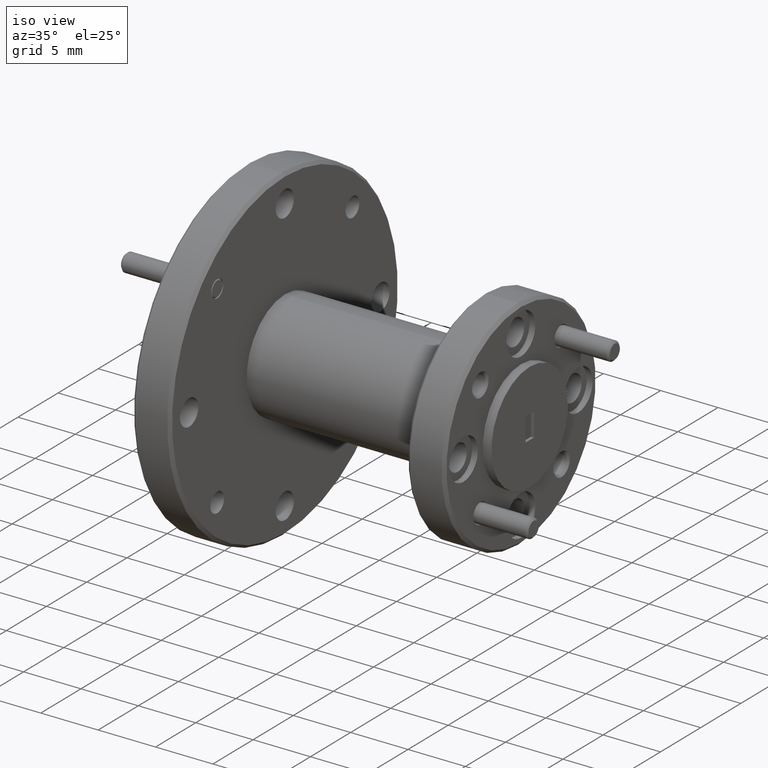
[diagram: clean part render]
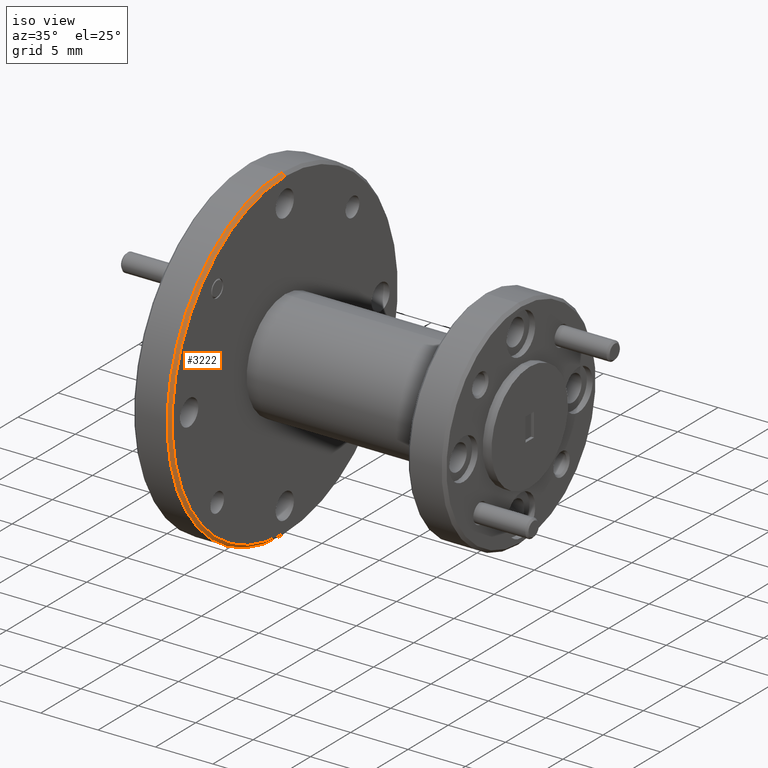
[diagram: same view with one face highlighted and labeled with its STEP entity id]
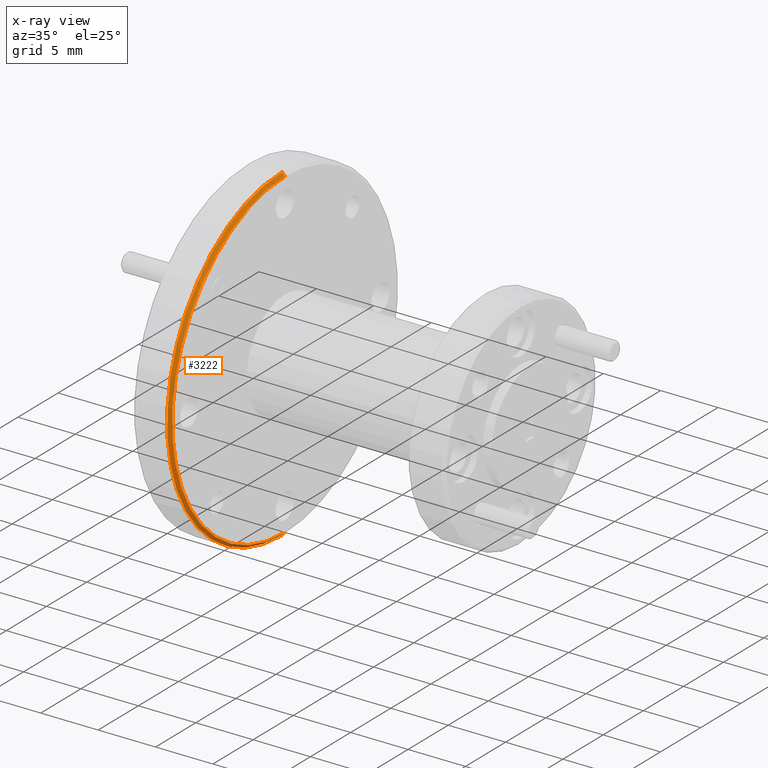
[diagram: x-ray of the same camera — body ghosted, the highlighted face saturated]
A machine part, iso view. The second image highlights one B-rep face of the part: STEP entity #3222.
The next image is the same camera in x-ray: the body ghosted, the highlighted face saturated — about 0% of this face is hidden behind the body in this view.
In plain terms, the highlighted conical surface has half-angle 45 deg.
Its self-contained STEP definition (entity closure, byte-faithful):
#4 = VERTEX_POINT ( 'NONE', #1412 ) ;
#189 = EDGE_LOOP ( 'NONE', ( #3638, #1859, #3540, #1771 ) ) ;
#206 = CIRCLE ( 'NONE', #228, 0.5524999999999997700 ) ;
#228 = AXIS2_PLACEMENT_3D ( 'NONE', #1651, #422, #455 ) ;
#243 = CONICAL_SURFACE ( 'NONE', #791, 0.5625000000000001100, 0.7853981633974482800 ) ;
#422 = DIRECTION ( 'NONE',  ( 1.000000000000000000, -1.214504284265894100E-046, 1.479334085402692200E-046 ) ) ;
#455 = DIRECTION ( 'NONE',  ( 0.0000000000000000000, 0.0000000000000000000, 1.000000000000000000 ) ) ;
#456 = DIRECTION ( 'NONE',  ( -1.000000000000000000, 1.214504284265894100E-046, -1.479334085402692200E-046 ) ) ;
#486 = VECTOR ( 'NONE', #593, 39.37007874015748900 ) ;
#524 = VECTOR ( 'NONE', #3559, 39.37007874015748900 ) ;
#593 = DIRECTION ( 'NONE',  ( -0.7071067811865474600, 8.659560562354932900E-017, -0.7071067811865474600 ) ) ;
#791 = AXIS2_PLACEMENT_3D ( 'NONE', #3542, #1697, #3836 ) ;
#1004 = VERTEX_POINT ( 'NONE', #1058 ) ;
#1058 = CARTESIAN_POINT ( 'NONE',  ( -2.250299588133233300, 0.7127532445995205000, -0.04397184193516739300 ) ) ;
#1362 = CARTESIAN_POINT ( 'NONE',  ( -2.250299588133233300, 0.7127532445995203900, 1.081028158064832700 ) ) ;
#1370 = CARTESIAN_POINT ( 'NONE',  ( -2.250299588133233300, 0.7127532445995203900, 0.5185281580648326600 ) ) ;
#1389 = DIRECTION ( 'NONE',  ( 0.0000000000000000000, 0.0000000000000000000, 1.000000000000000000 ) ) ;
#1412 = CARTESIAN_POINT ( 'NONE',  ( -2.250299588133233300, 0.7127532445995203900, 1.081028158064832700 ) ) ;
#1651 = CARTESIAN_POINT ( 'NONE',  ( -2.240299588133233000, 0.7127532445995203900, 0.5185281580648326600 ) ) ;
#1688 = EDGE_CURVE ( 'NONE', #2828, #3070, #206, .T. ) ;
#1697 = DIRECTION ( 'NONE',  ( -1.000000000000000000, 1.214504284265894100E-046, -1.479334085402692200E-046 ) ) ;
#1749 = AXIS2_PLACEMENT_3D ( 'NONE', #1370, #456, #1389 ) ;
#1771 = ORIENTED_EDGE ( 'NONE', *, *, #3184, .F. ) ;
#1859 = ORIENTED_EDGE ( 'NONE', *, *, #1688, .F. ) ;
#2374 = CIRCLE ( 'NONE', #1749, 0.5625000000000001100 ) ;
#2451 = LINE ( 'NONE', #1362, #524 ) ;
#2466 = CARTESIAN_POINT ( 'NONE',  ( -2.250299588133233300, 0.7127532445995205000, -0.04397184193516739300 ) ) ;
#2761 = EDGE_CURVE ( 'NONE', #2828, #4, #2451, .T. ) ;
#2828 = VERTEX_POINT ( 'NONE', #3729 ) ;
#3070 = VERTEX_POINT ( 'NONE', #3446 ) ;
#3108 = FACE_OUTER_BOUND ( 'NONE', #189, .T. ) ;
#3184 = EDGE_CURVE ( 'NONE', #1004, #4, #2374, .T. ) ;
#3222 = ADVANCED_FACE ( 'NONE', ( #3108 ), #243, .T. ) ;
#3446 = CARTESIAN_POINT ( 'NONE',  ( -2.240299588133233000, 0.7127532445995203900, -0.03397184193516715500 ) ) ;
#3450 = EDGE_CURVE ( 'NONE', #3070, #1004, #3514, .T. ) ;
#3514 = LINE ( 'NONE', #2466, #486 ) ;
#3540 = ORIENTED_EDGE ( 'NONE', *, *, #2761, .T. ) ;
#3542 = CARTESIAN_POINT ( 'NONE',  ( -2.250299588133233300, 0.7127532445995203900, 0.5185281580648326600 ) ) ;
#3559 = DIRECTION ( 'NONE',  ( -0.7071067811865474600, 8.587842151845280400E-047, 0.7071067811865474600 ) ) ;
#3638 = ORIENTED_EDGE ( 'NONE', *, *, #3450, .F. ) ;
#3729 = CARTESIAN_POINT ( 'NONE',  ( -2.240299588133233000, 0.7127532445995203900, 1.071028158064832400 ) ) ;
#3836 = DIRECTION ( 'NONE',  ( 0.0000000000000000000, 0.0000000000000000000, 1.000000000000000000 ) ) ;